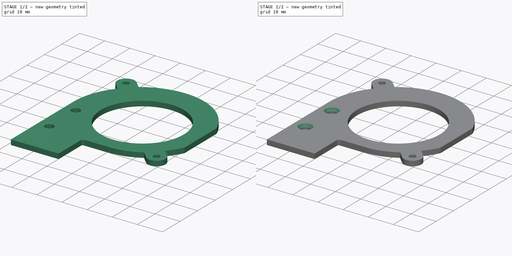
[diagram: build sequence overview — one tinted view per stage of 2, left to right]
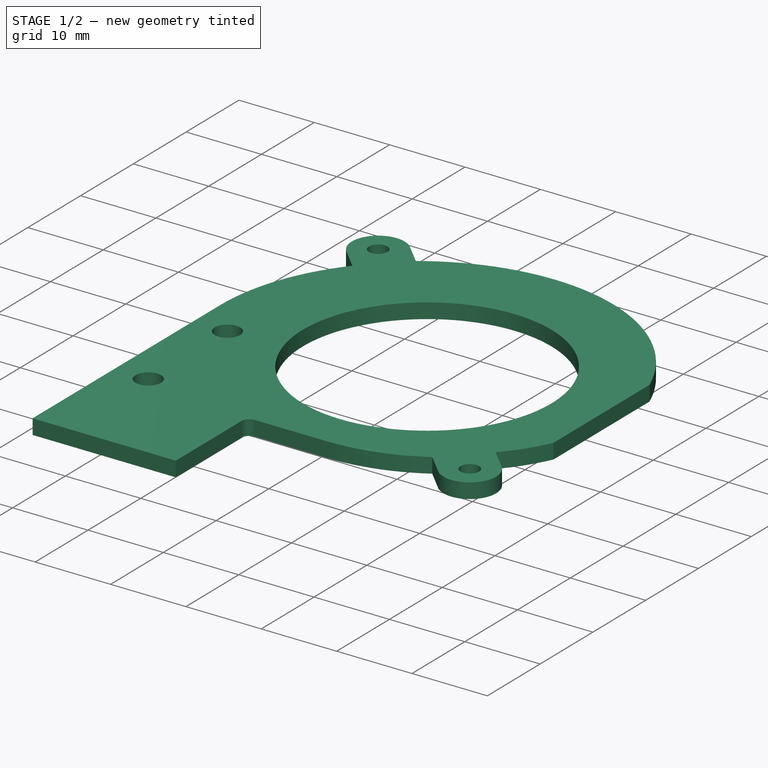
[diagram: stage 1 of 2 — iso view after this stage's code; geometry added in this stage tinted green]
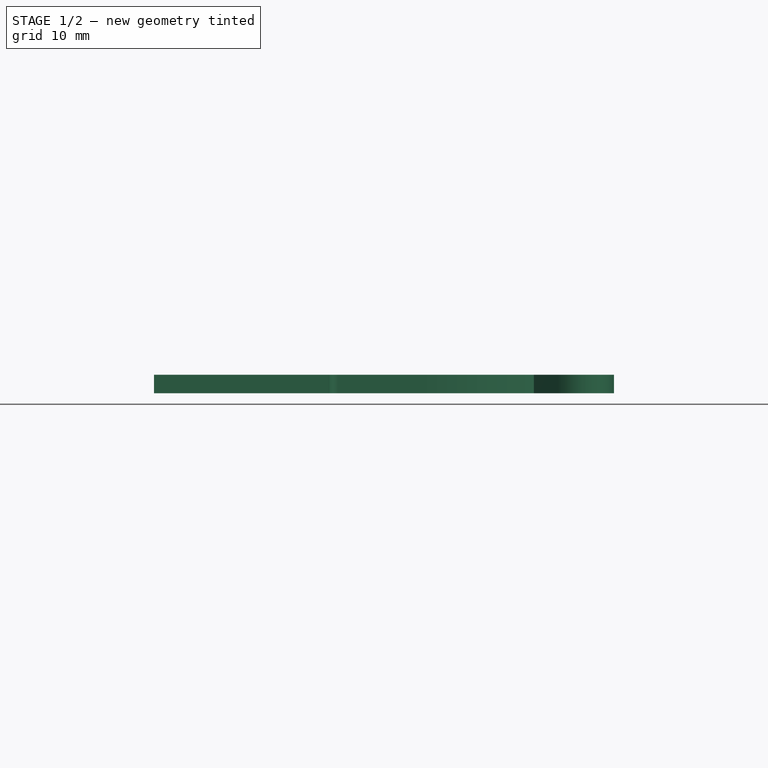
[diagram: stage 1 of 2 — front view after this stage's code; geometry added in this stage tinted green]
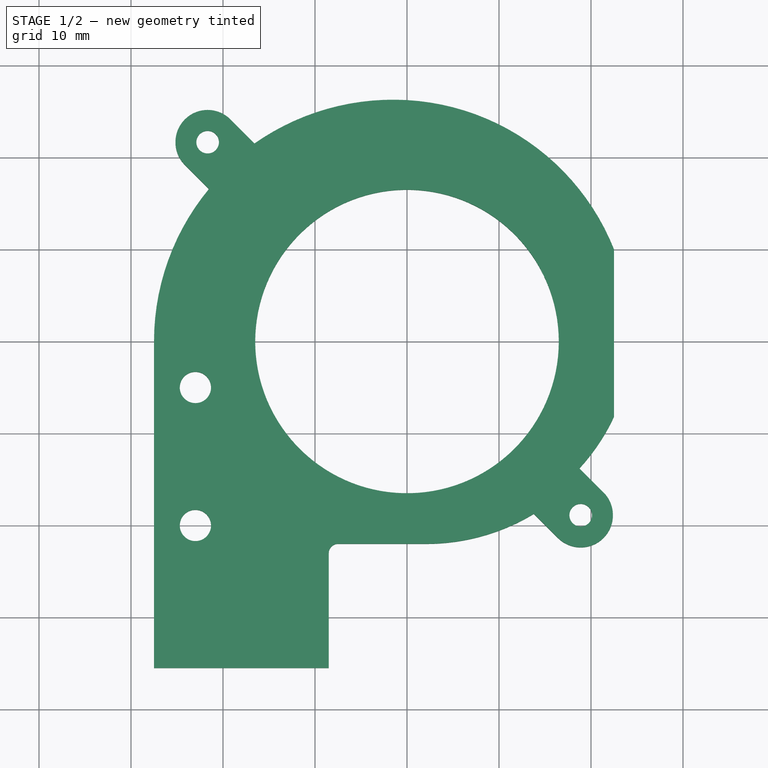
[diagram: stage 1 of 2 — top view after this stage's code; geometry added in this stage tinted green]
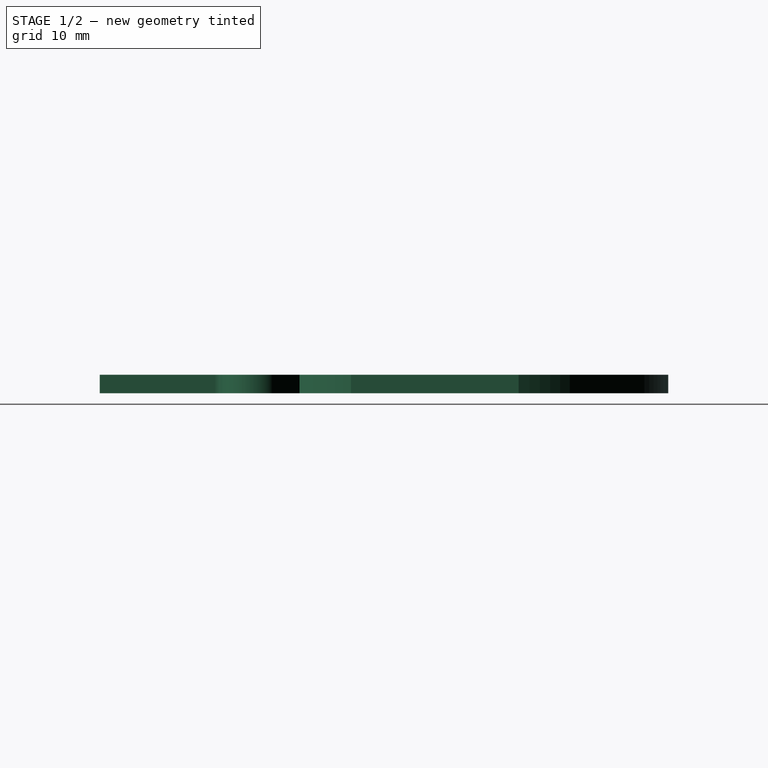
[diagram: stage 1 of 2 — right view after this stage's code; geometry added in this stage tinted green]
FCSTD DOCUMENT  (FreeCAD 0.14R3310 (Git))
Label: 74. SOPORTE BLOWER (VENTILADOR DE LA TOBERA)
License: CC-BY 3.0
LicenseURL: http://creativecommons.org/licenses/by/3.0/
objects: Sketcher::SketchObject×2, PartDesign::Pad×1, PartDesign::Pocket×1, PartDesign::Chamfer×1
note: 7 computed .brp shape members not serialized (recipe doc carries the construction recipe); baked Part::Feature solids carry a one-line shape summary decoded from their .brp

FEATURE [Sketcher::SketchObject] Sketch
  sketch-geometry (22):
    g0: Circle CenterX=0 CenterY=0 CenterZ=0 NormalX=0 NormalY=0 NormalZ=1 Radius=16.5
    g1: LineSegment StartX=-27.5 StartY=4.08e-09 StartZ=0 EndX=-27.5 EndY=-35.5 EndZ=0
    g2: LineSegment StartX=-27.5 StartY=-35.5 StartZ=0 EndX=-8.5 EndY=-35.5 EndZ=0
    g3: LineSegment StartX=-8.5 StartY=-35.5 StartZ=0 EndX=-8.5 EndY=-23 EndZ=0
    g4: LineSegment StartX=-7.5 StartY=-22 StartZ=0 EndX=2.1 EndY=-22 EndZ=0
    g5: ArcOfCircle CenterX=-7.5 CenterY=-23 CenterZ=0 NormalX=0 NormalY=0 NormalZ=1 Radius=1 StartAngle=1.5708 EndAngle=3.14159
    g6: LineSegment [constr] StartX=-35.3553 StartY=35.3553 StartZ=0 EndX=35.3553 EndY=-35.3553 EndZ=0
    g7: ArcOfCircle CenterX=-1.5 CenterY=0 CenterZ=0 NormalX=0 NormalY=0 NormalZ=1 Radius=26 StartAngle=2.45015 EndAngle=3.14159
    g8: LineSegment StartX=-24.1449 StartY=19.1951 StartZ=0 EndX=-21.5286 EndY=16.5788 EndZ=0
    g9: LineSegment StartX=-19.1951 StartY=24.1449 StartZ=0 EndX=-16.5788 EndY=21.5286 EndZ=0
    g10: ArcOfCircle CenterX=-21.67 CenterY=21.67 CenterZ=0 NormalX=0 NormalY=0 NormalZ=1 Radius=3.5 StartAngle=0.785398 EndAngle=3.92699
    g11: ArcOfCircle CenterX=-1.5 CenterY=0 CenterZ=0 NormalX=0 NormalY=0 NormalZ=1 Radius=26.284 StartAngle=1.5137 EndAngle=2.1818
    g12: ArcOfCircle CenterX=-1.47238 CenterY=0.483222 CenterZ=0 NormalX=0 NormalY=0 NormalZ=1 Radius=25.8 StartAngle=0.378657 EndAngle=1.5137
    g13: LineSegment StartX=22.5 StartY=10.0208 StartZ=0 EndX=22.5 EndY=-8.19921 EndZ=0
    g14: LineSegment StartX=18.7412 StartY=-13.7914 StartZ=0 EndX=21.3575 EndY=-16.4077 EndZ=0
    g15: LineSegment StartX=13.7914 StartY=-18.7412 StartZ=0 EndX=16.4077 EndY=-21.3575 EndZ=0
    g16: ArcOfCircle CenterX=18.8826 CenterY=-18.8826 CenterZ=0 NormalX=0 NormalY=0 NormalZ=1 Radius=3.5 StartAngle=3.92699 EndAngle=7.06858
    g17: ArcOfCircle CenterX=2.40926 CenterY=1.24548 CenterZ=0 NormalX=0 NormalY=0 NormalZ=1 Radius=22.2 StartAngle=5.53905 EndAngle=5.84374
    g18: ArcOfCircle CenterX=2.1 CenterY=0.601611 CenterZ=0 NormalX=0 NormalY=0 NormalZ=1 Radius=22.6016 StartAngle=4.71239 EndAngle=5.25606
    g19: Circle CenterX=18.8826 CenterY=-18.8826 CenterZ=0 NormalX=0 NormalY=0 NormalZ=1 Radius=1.23
    g20: Circle CenterX=-21.67 CenterY=21.67 CenterZ=0 NormalX=0 NormalY=0 NormalZ=1 Radius=1.23
    g21: Circle CenterX=-23 CenterY=-20 CenterZ=0 NormalX=0 NormalY=0 NormalZ=1 Radius=1.7
  constraints (69):
    c: Coincident(g0,g-1)
    c: Radius(g0) = 16.5
    c: Vertical(g1)
    c: Coincident(g2,g1)
    c: Horizontal(g2)
    c: Coincident(g3,g2)
    c: Vertical(g3)
    c: Horizontal(g4)
    c: Tangent(g4,g5)
    c: Tangent(g3,g5)
    c: Distance(g3) = 12.5
    c: DistanceY(g-1,g2) = -35.5
    c: DistanceX(g-2,g3) = -8.5
    c: Radius(g5) = 1
    c: Distance(g4) = 9.6
    c: PointOnObject(g-1,g6)
    c: Angle(g6,g-1) = 0.785398
    c: Symmetric(g6,g6,g-1)
    c: Distance(g6) = 100
    c: Distance(g2) = 19
    c: PointOnObject(g7,g-1)
    c: Coincident(g7,g1)
    c: Tangent(g7,g1)
    c: Distance(g-1,g7) = 1.5
    c: Parallel(g9,g8)
    c: Parallel(g8,g6)
    c: Distance(g9,g8) = 7
    c: Symmetric(g9,g8,g6)
    c: PointOnObject(g10,g6)
    c: Coincident(g10,g9)
    c: Coincident(g10,g8)
    c: Tangent(g10,g9)
    c: Coincident(g7,g8)
    c: Distance(g8) = 3.7
    c: Equal(g9,g8)
    c: Coincident(g11,g7)
    c: Coincident(g11,g9)
    c: PointOnObject(g11,g-2)
    c: Coincident(g12,g11)
    c: Tangent(g12,g11)
    c: Radius(g12) = 25.8
    c: Coincident(g13,g12)
    c: Vertical(g13)
    c: Distance(g13) = 18.22
    c: Distance(g-1,g13) = 22.5
    c: Parallel(g14,g15)
    c: Parallel(g15,g6)
    c: PointOnObject(g16,g6)
    c: Coincident(g16,g14)
    c: Coincident(g16,g15)
    c: Equal(g16,g10)
    c: Equal(g14,g15)
    c: Equal(g15,g8)
    c: Tangent(g14,g16)
    c: Tangent(g16,g15)
    c: Distance(g16,g10) = 57.35
    c: Coincident(g17,g13)
    c: Coincident(g17,g14)
    c: Radius(g17) = 22.2
    c: Coincident(g18,g15)
    c: Coincident(g18,g4)
    c: Tangent(g18,g4)
    c: Coincident(g19,g16)
    c: Radius(g19) = 1.23
    c: Coincident(g20,g10)
    c: Radius(g20) = 1.23
    c: Distance(g21,g2) = 15.5
    c: Radius(g21) = 1.7
    c: Distance(g21,g1) = 4.5
FEATURE [PartDesign::Pad] Pad
  Length = 2
  Length2 = 100
  Sketch = -> Sketch
  Type = 0
FEATURE [Sketcher::SketchObject] Sketch001
  ExternalGeometry = -> [Pad]
  Placement = pos=(0,0,2) rot=(0,0,1;0rad)
  Support = -> Pad [Face23]
  sketch-geometry (1):
    g0: Circle CenterX=-23 CenterY=-5 CenterZ=0 NormalX=0 NormalY=0 NormalZ=1 Radius=1.7
  constraints (3):
    c: Equal(g-3,g0)
    c: Distance(g0,g-4) = 4.5
    c: Distance(g0,g-3) = 15
FEATURE [PartDesign::Pocket] Pocket
  Length = 5
  Sketch = -> Sketch001
  Type = 0
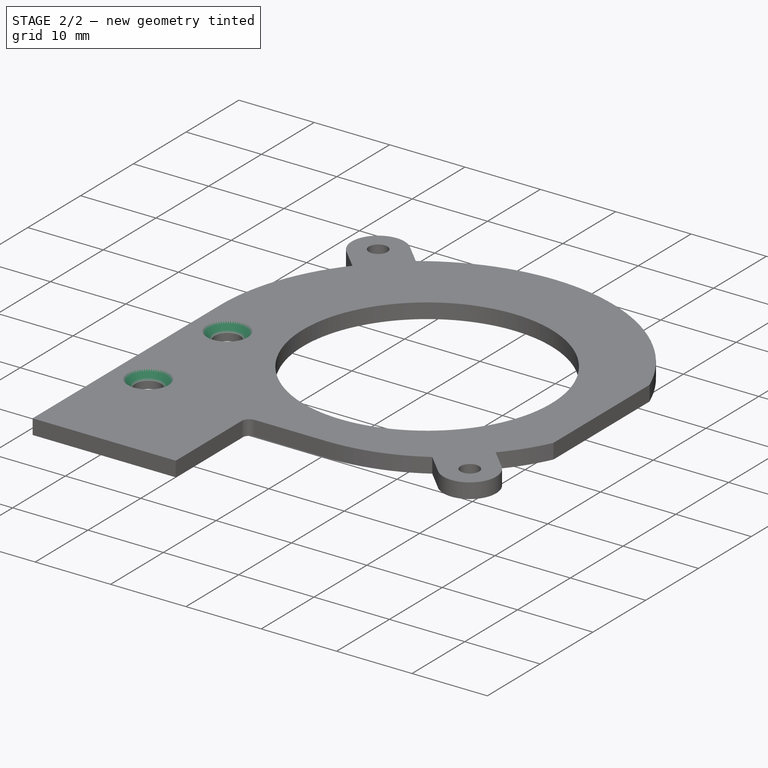
[diagram: stage 2 of 2 — iso view after this stage's code; geometry added in this stage tinted green]
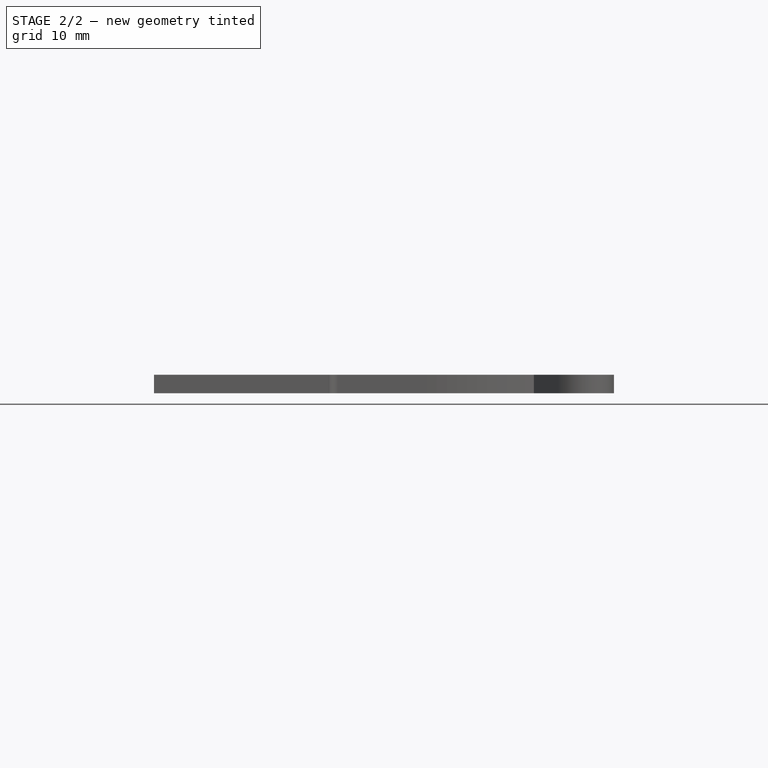
[diagram: stage 2 of 2 — front view after this stage's code; geometry added in this stage tinted green]
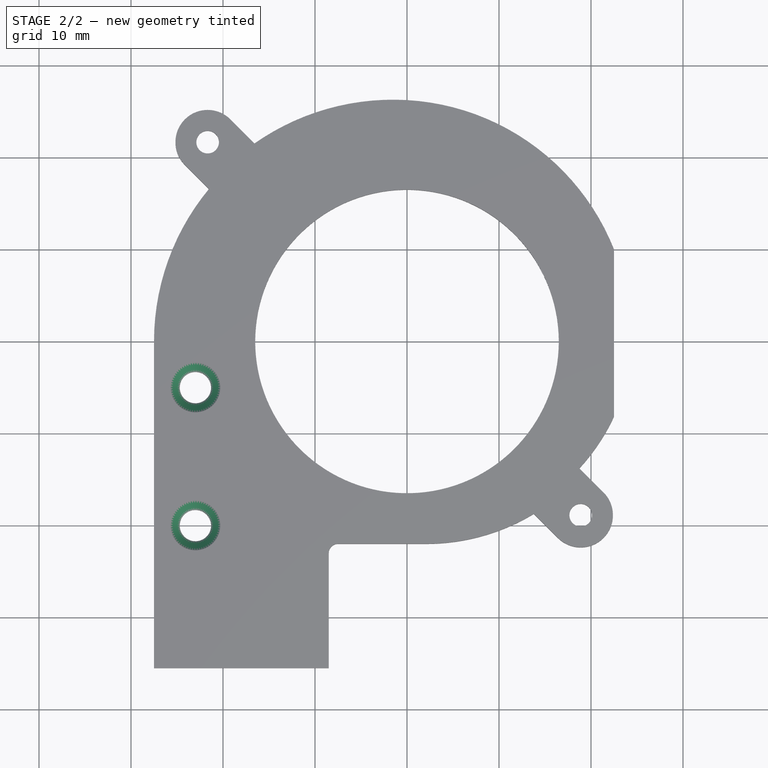
[diagram: stage 2 of 2 — top view after this stage's code; geometry added in this stage tinted green]
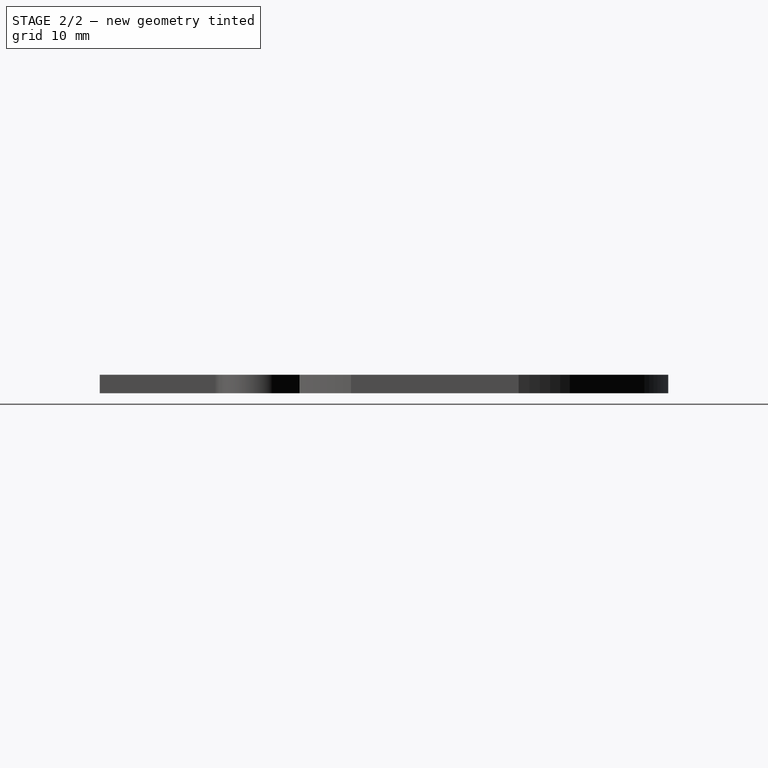
[diagram: stage 2 of 2 — right view after this stage's code; geometry added in this stage tinted green]
FEATURE [PartDesign::Chamfer] Chamfer
  Base = -> Pocket [Edge45,Edge48]
  Size = 1
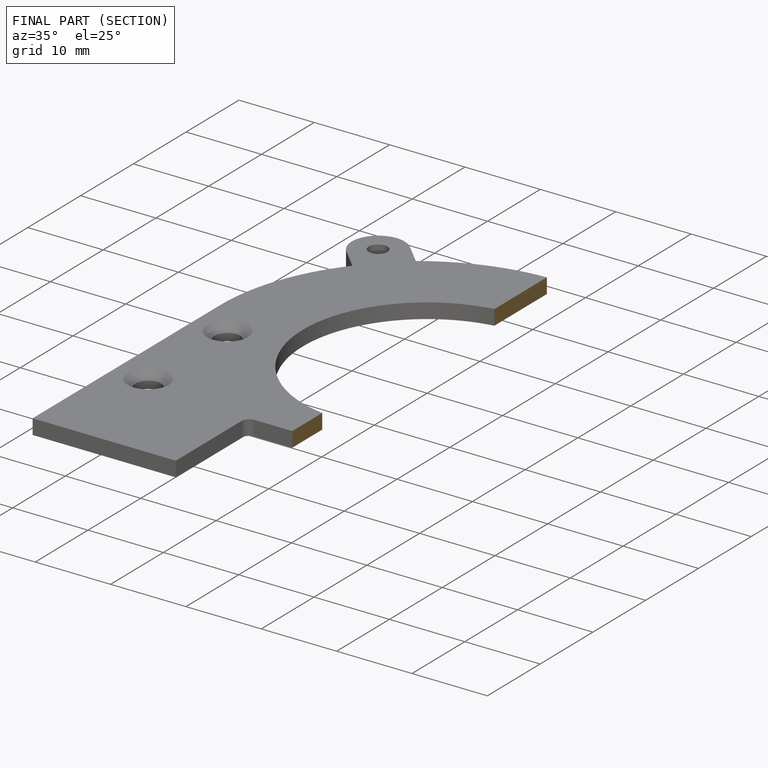
[diagram: finished part — half-section view (interior)]
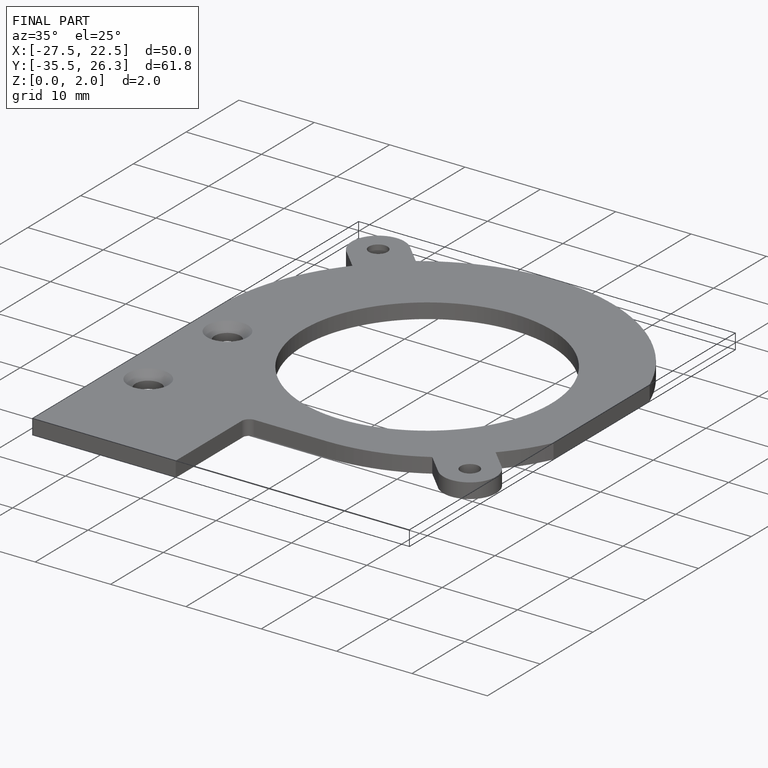
[diagram: finished part — iso view with bounding-box wireframe]
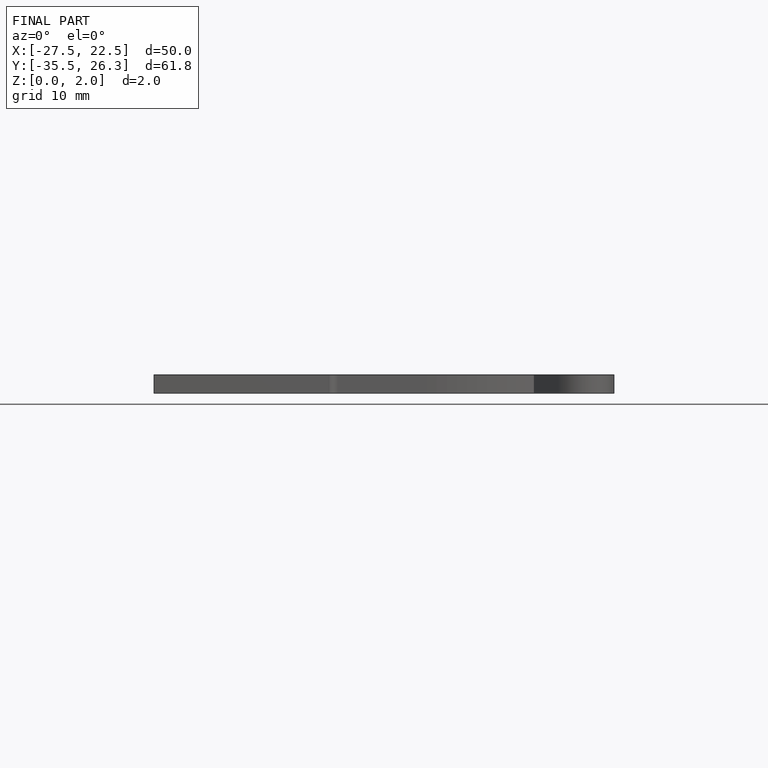
[diagram: finished part — front view with bounding-box wireframe]
